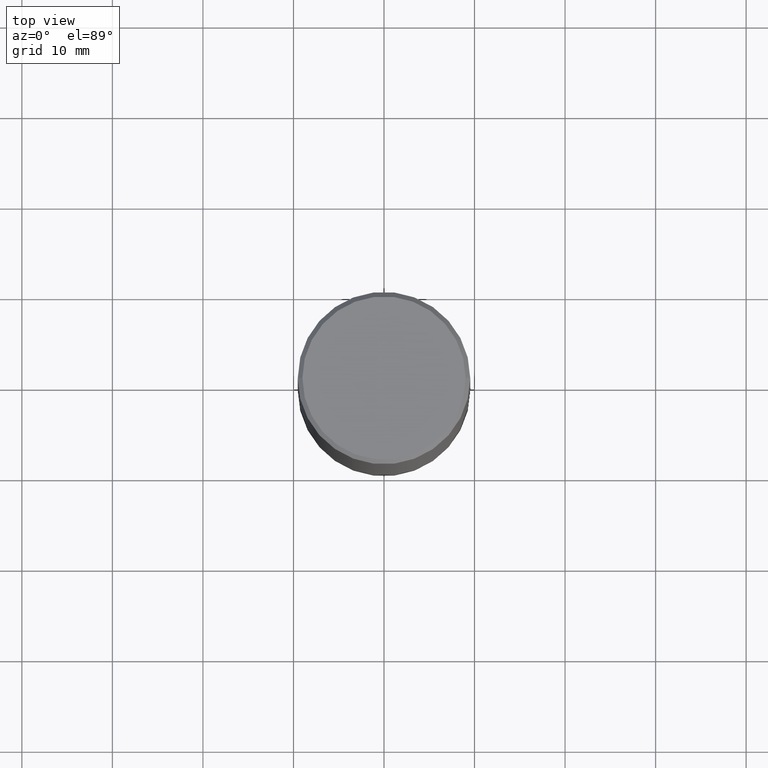
[diagram: clean part render]
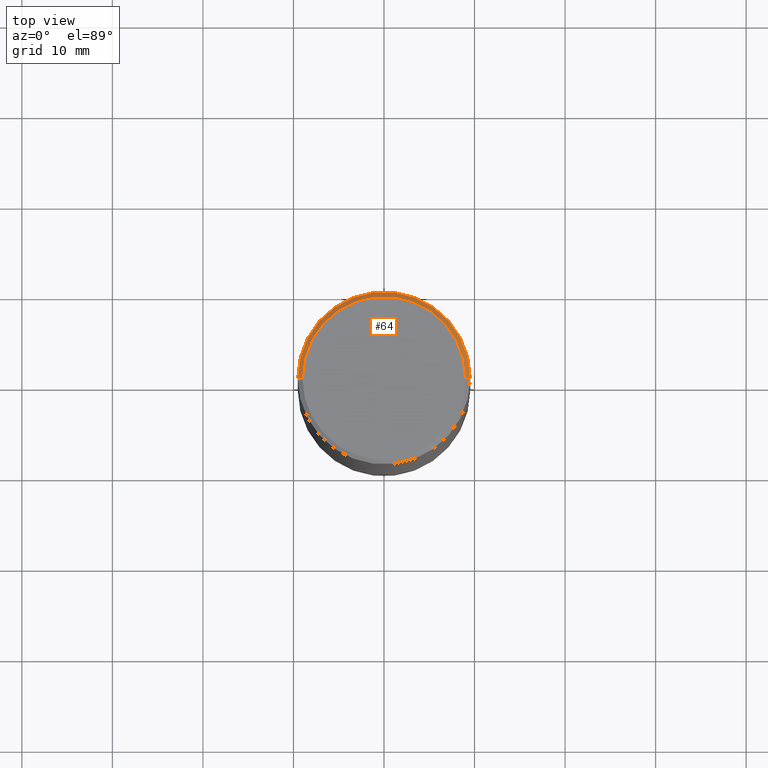
[diagram: same view with one face highlighted and labeled with its STEP entity id]
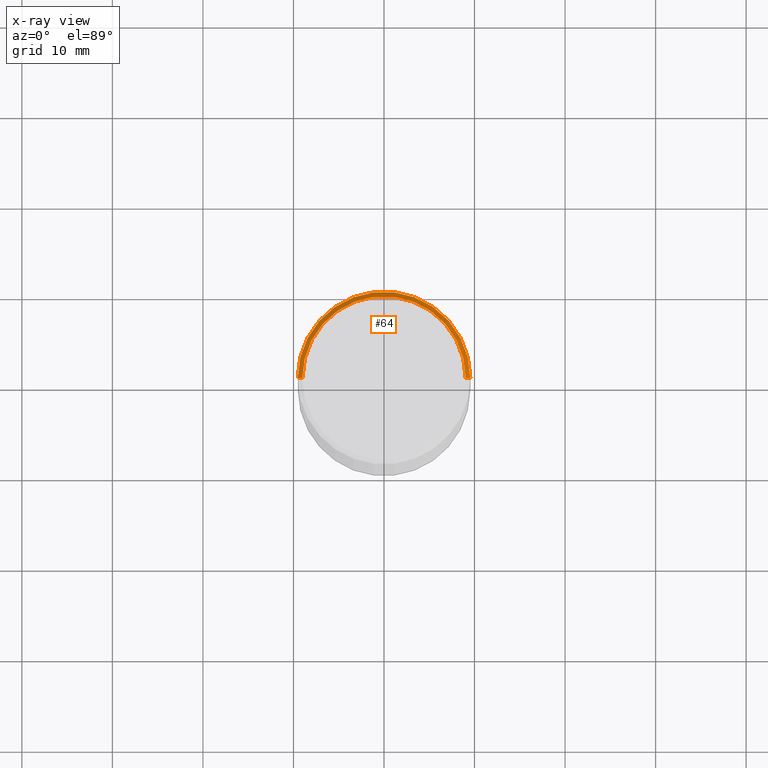
[diagram: x-ray of the same camera — body ghosted, the highlighted face saturated]
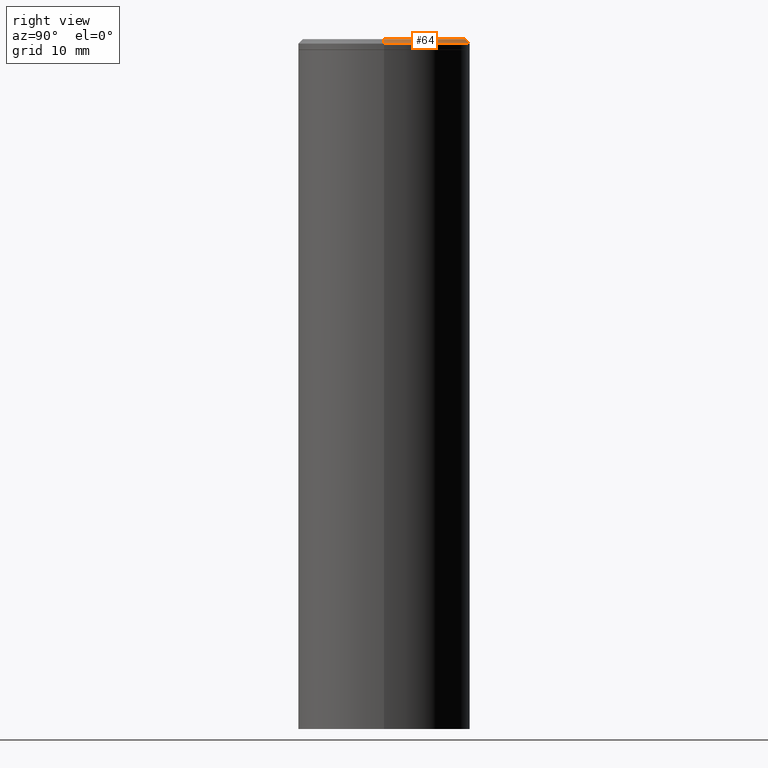
[diagram: same view with one face highlighted and labeled with its STEP entity id]
A machine part, top view. The second image highlights one B-rep face of the part: STEP entity #64.
The next image is the same camera in x-ray: the body ghosted, the highlighted face saturated — about 0% of this face is hidden behind the body in this view.
A second angle (right view) of the same face is appended — the face is thin or edge-on in the first view.
In plain terms, the highlighted conical surface has half-angle 45 deg.
Its self-contained STEP definition (entity closure, byte-faithful):
#2 = DIRECTION ( 'NONE',  ( 1.000000000000000000, -6.982962677686265922E-15, 0.000000000000000000 ) ) ;
#5 = AXIS2_PLACEMENT_3D ( 'NONE', #379, #39, #212 ) ;
#13 = CARTESIAN_POINT ( 'NONE',  ( 4.890937612370280165E-31, -6.982962677686301470E-17, -0.02000000000000003164 ) ) ;
#14 = CIRCLE ( 'NONE', #5, 0.3549999999999998157 ) ;
#20 = EDGE_CURVE ( 'NONE', #313, #123, #14, .T. ) ;
#39 = DIRECTION ( 'NONE',  ( -2.445468806185136597E-29, 3.491481338843145583E-15, 1.000000000000000000 ) ) ;
#56 = VERTEX_POINT ( 'NONE', #210 ) ;
#58 = LINE ( 'NONE', #163, #65 ) ;
#64 = ADVANCED_FACE ( 'NONE', ( #271 ), #277, .T. ) ;
#65 = VECTOR ( 'NONE', #127, 39.37007874015748143 ) ;
#77 = LINE ( 'NONE', #387, #201 ) ;
#86 = VERTEX_POINT ( 'NONE', #171 ) ;
#90 = AXIS2_PLACEMENT_3D ( 'NONE', #13, #107, #242 ) ;
#107 = DIRECTION ( 'NONE',  ( 2.445468806185136597E-29, -3.491481338843145583E-15, -1.000000000000000000 ) ) ;
#113 = DIRECTION ( 'NONE',  ( 0.7071067811865467956, -7.319954787623254468E-15, -0.7071067811865482389 ) ) ;
#118 = ORIENTED_EDGE ( 'NONE', *, *, #149, .F. ) ;
#123 = VERTEX_POINT ( 'NONE', #193 ) ;
#125 = CARTESIAN_POINT ( 'NONE',  ( 0.3549999999999998157, -2.538996582575039076E-15, 4.268512490117958041E-18 ) ) ;
#127 = DIRECTION ( 'NONE',  ( -0.7071067811865467956, 2.468850131082249172E-15, -0.7071067811865482389 ) ) ;
#149 = EDGE_CURVE ( 'NONE', #123, #56, #58, .T. ) ;
#154 = CARTESIAN_POINT ( 'NONE',  ( 4.890937612370280165E-31, -6.982962677686301470E-17, -0.02000000000000003164 ) ) ;
#163 = CARTESIAN_POINT ( 'NONE',  ( -0.3749999999999998335, 2.548781377355485929E-15, -0.02000000000000003164 ) ) ;
#171 = CARTESIAN_POINT ( 'NONE',  ( 0.3749999999999998335, -2.642516375941186056E-15, -0.02000000000000003164 ) ) ;
#192 = AXIS2_PLACEMENT_3D ( 'NONE', #154, #378, #2 ) ;
#193 = CARTESIAN_POINT ( 'NONE',  ( -0.3549999999999998157, 2.513866563967054675E-15, 4.268512490082953109E-18 ) ) ;
#196 = EDGE_CURVE ( 'NONE', #86, #56, #227, .T. ) ;
#201 = VECTOR ( 'NONE', #113, 39.37007874015748143 ) ;
#210 = CARTESIAN_POINT ( 'NONE',  ( -0.3749999999999998335, 2.548781377355485929E-15, -0.02000000000000003164 ) ) ;
#212 = DIRECTION ( 'NONE',  ( 1.000000000000000000, -6.982962677686266711E-15, 4.876231632511990425E-29 ) ) ;
#227 = CIRCLE ( 'NONE', #192, 0.3749999999999998335 ) ;
#242 = DIRECTION ( 'NONE',  ( -1.000000000000000000, 6.982962677686265922E-15, 0.000000000000000000 ) ) ;
#245 = EDGE_CURVE ( 'NONE', #313, #86, #77, .T. ) ;
#271 = FACE_OUTER_BOUND ( 'NONE', #367, .T. ) ;
#277 = CONICAL_SURFACE ( 'NONE', #90, 0.3749999999999998335, 0.7853981633974472798 ) ;
#301 = ORIENTED_EDGE ( 'NONE', *, *, #245, .T. ) ;
#306 = ORIENTED_EDGE ( 'NONE', *, *, #20, .F. ) ;
#313 = VERTEX_POINT ( 'NONE', #125 ) ;
#367 = EDGE_LOOP ( 'NONE', ( #306, #301, #390, #118 ) ) ;
#378 = DIRECTION ( 'NONE',  ( -2.445468806185136597E-29, 3.491481338843145583E-15, 1.000000000000000000 ) ) ;
#379 = CARTESIAN_POINT ( 'NONE',  ( -1.043851414335219820E-46, 1.490343170380447200E-32, 4.268512490100411279E-18 ) ) ;
#387 = CARTESIAN_POINT ( 'NONE',  ( 0.3749999999999998335, -2.642516375941186056E-15, -0.02000000000000003164 ) ) ;
#390 = ORIENTED_EDGE ( 'NONE', *, *, #196, .T. ) ;